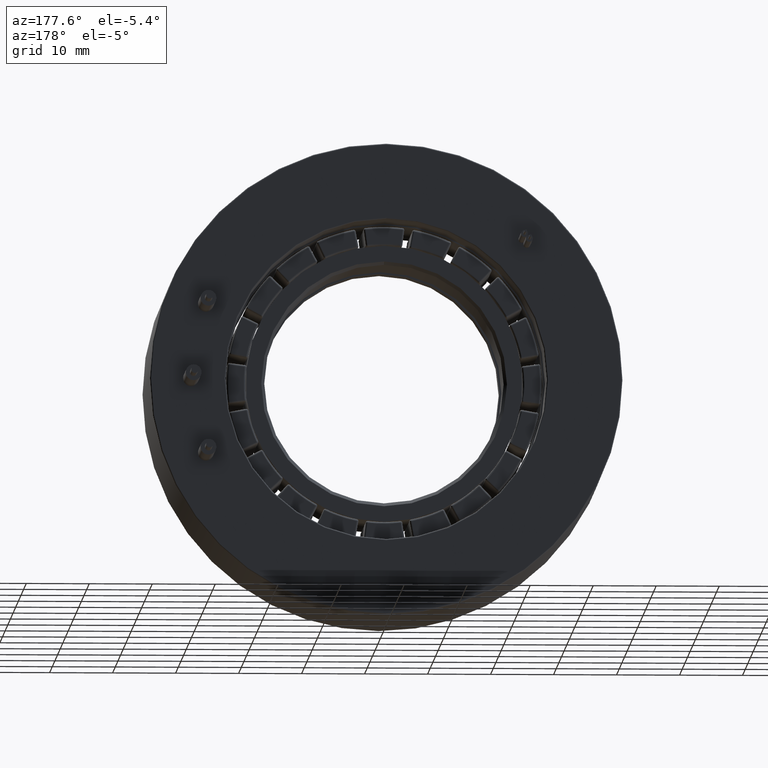
[diagram: clean part render]
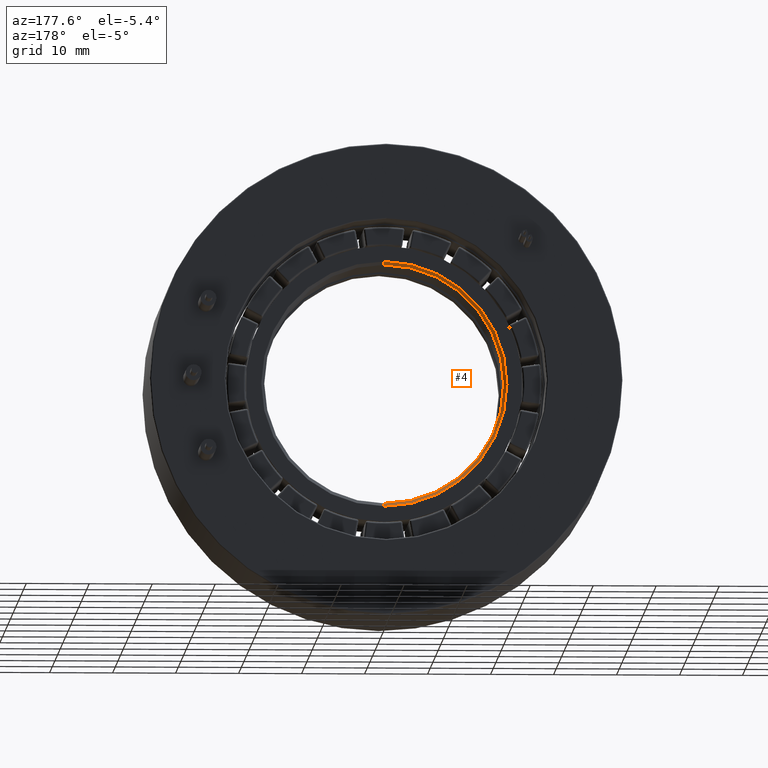
[diagram: same view with one face highlighted and labeled with its STEP entity id]
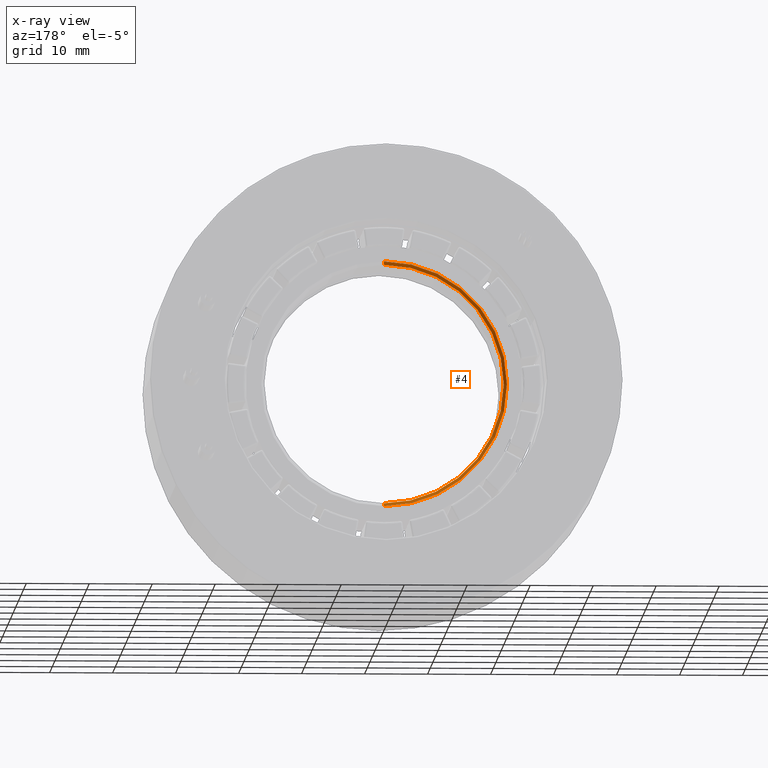
[diagram: x-ray of the same camera — body ghosted, the highlighted face saturated]
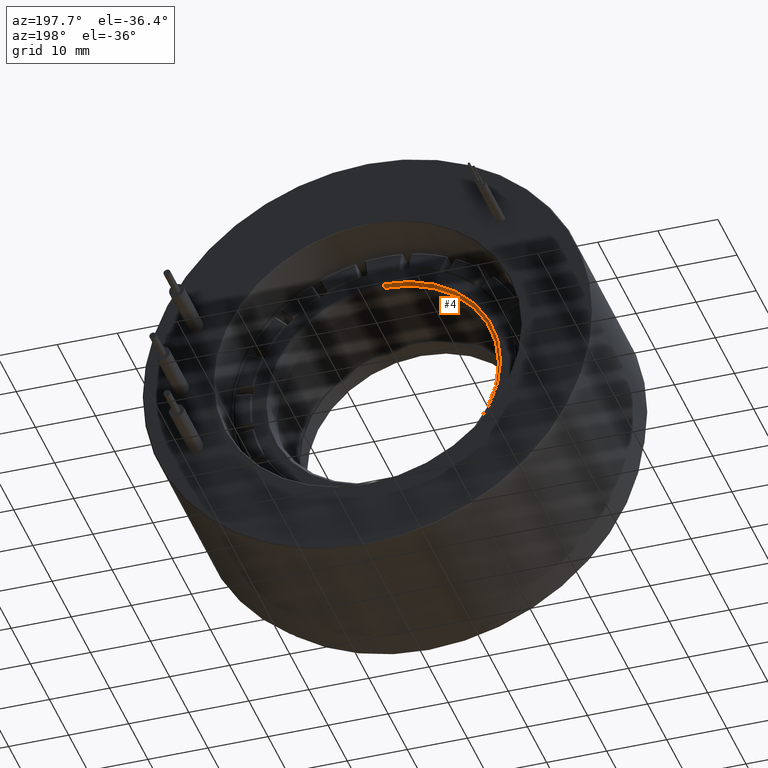
[diagram: same view with one face highlighted and labeled with its STEP entity id]
A machine part, auxiliary view. The second image highlights one B-rep face of the part: STEP entity #4.
The next image is the same camera in x-ray: the body ghosted, the highlighted face saturated — about 0% of this face is hidden behind the body in this view.
A second angle (auxiliary view) of the same face is appended — the face is thin or edge-on in the first view.
In plain terms, the highlighted conical surface has half-angle 45 deg.
Its self-contained STEP definition (entity closure, byte-faithful):
#4 = ADVANCED_FACE ( 'NONE', ( #1368 ), #1540, .F. ) ;
#168 = DIRECTION ( 'NONE',  ( -0.0000000000000000000, 1.000000000000000000, -0.0000000000000000000 ) ) ;
#210 = CARTESIAN_POINT ( 'NONE',  ( 0.0000000000000000000, 20.00000000000000000, 19.50000000000000000 ) ) ;
#256 = VERTEX_POINT ( 'NONE', #1588 ) ;
#587 = VECTOR ( 'NONE', #1941, 1000.000000000000000 ) ;
#834 = CIRCLE ( 'NONE', #1409, 19.00000000000000000 ) ;
#889 = CARTESIAN_POINT ( 'NONE',  ( 0.0000000000000000000, 20.00000000000000000, 19.50000000000000000 ) ) ;
#911 = DIRECTION ( 'NONE',  ( -0.0000000000000000000, 1.000000000000000000, -0.0000000000000000000 ) ) ;
#939 = DIRECTION ( 'NONE',  ( 0.0000000000000000000, 0.0000000000000000000, 1.000000000000000000 ) ) ;
#971 = CARTESIAN_POINT ( 'NONE',  ( 0.0000000000000000000, 19.49999999999999300, -19.00000000000000000 ) ) ;
#1047 = EDGE_CURVE ( 'NONE', #1547, #1997, #834, .T. ) ;
#1136 = CIRCLE ( 'NONE', #2849, 19.50000000000000000 ) ;
#1204 = VECTOR ( 'NONE', #1461, 1000.000000000000000 ) ;
#1270 = VERTEX_POINT ( 'NONE', #210 ) ;
#1334 = ORIENTED_EDGE ( 'NONE', *, *, #2380, .T. ) ;
#1368 = FACE_OUTER_BOUND ( 'NONE', #2998, .T. ) ;
#1409 = AXIS2_PLACEMENT_3D ( 'NONE', #2692, #911, #939 ) ;
#1441 = CARTESIAN_POINT ( 'NONE',  ( 0.0000000000000000000, 20.00000000000000000, 0.0000000000000000000 ) ) ;
#1461 = DIRECTION ( 'NONE',  ( 8.659560562354874900E-017, 0.7071067811865524600, -0.7071067811865426900 ) ) ;
#1540 = CONICAL_SURFACE ( 'NONE', #1999, 19.50000000000000000, 0.7853981633974415100 ) ;
#1547 = VERTEX_POINT ( 'NONE', #1844 ) ;
#1588 = CARTESIAN_POINT ( 'NONE',  ( 2.388061258337338900E-015, 20.00000000000000000, -19.50000000000000000 ) ) ;
#1844 = CARTESIAN_POINT ( 'NONE',  ( 2.326828918379971000E-015, 19.49999999999999300, 19.00000000000000000 ) ) ;
#1868 = EDGE_CURVE ( 'NONE', #256, #1270, #1136, .T. ) ;
#1941 = DIRECTION ( 'NONE',  ( 0.0000000000000000000, 0.7071067811865524600, 0.7071067811865426900 ) ) ;
#1991 = CARTESIAN_POINT ( 'NONE',  ( 0.0000000000000000000, 20.00000000000000000, 0.0000000000000000000 ) ) ;
#1997 = VERTEX_POINT ( 'NONE', #971 ) ;
#1999 = AXIS2_PLACEMENT_3D ( 'NONE', #1991, #168, #2237 ) ;
#2182 = ORIENTED_EDGE ( 'NONE', *, *, #3198, .F. ) ;
#2237 = DIRECTION ( 'NONE',  ( 0.0000000000000000000, 0.0000000000000000000, 1.000000000000000000 ) ) ;
#2309 = ORIENTED_EDGE ( 'NONE', *, *, #1868, .F. ) ;
#2325 = LINE ( 'NONE', #2991, #1204 ) ;
#2380 = EDGE_CURVE ( 'NONE', #1547, #1270, #2814, .T. ) ;
#2692 = CARTESIAN_POINT ( 'NONE',  ( 0.0000000000000000000, 19.49999999999999300, 0.0000000000000000000 ) ) ;
#2699 = DIRECTION ( 'NONE',  ( 0.0000000000000000000, 0.0000000000000000000, 1.000000000000000000 ) ) ;
#2804 = ORIENTED_EDGE ( 'NONE', *, *, #1047, .F. ) ;
#2814 = LINE ( 'NONE', #889, #587 ) ;
#2849 = AXIS2_PLACEMENT_3D ( 'NONE', #1441, #3232, #2699 ) ;
#2991 = CARTESIAN_POINT ( 'NONE',  ( 2.388061258337338900E-015, 20.00000000000000000, -19.50000000000000000 ) ) ;
#2998 = EDGE_LOOP ( 'NONE', ( #2182, #2804, #1334, #2309 ) ) ;
#3198 = EDGE_CURVE ( 'NONE', #1997, #256, #2325, .T. ) ;
#3232 = DIRECTION ( 'NONE',  ( -0.0000000000000000000, -1.000000000000000000, -0.0000000000000000000 ) ) ;